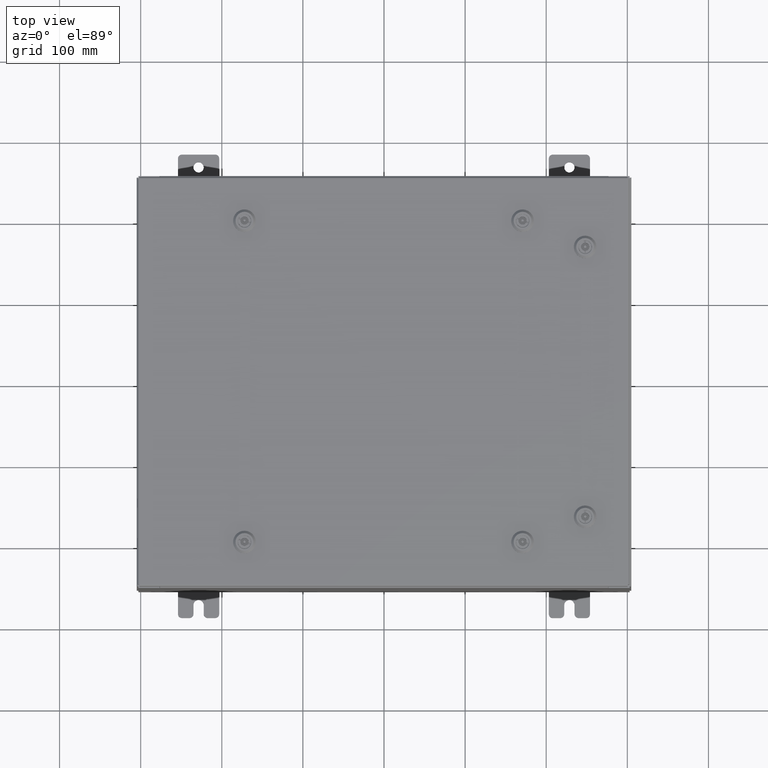
[diagram: clean part render]
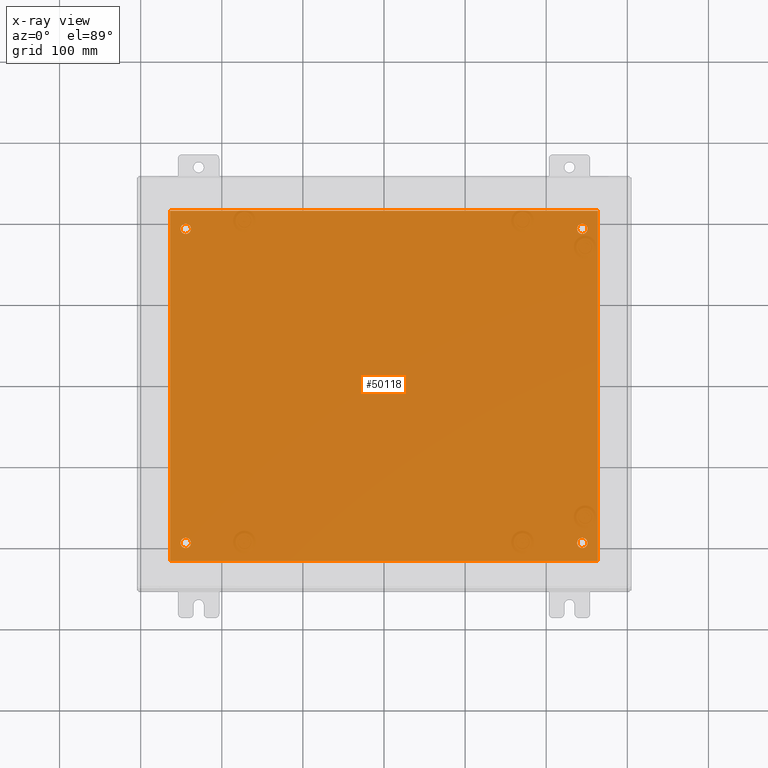
[diagram: x-ray — body ghosted, one internal face saturated and labeled with its STEP entity id]
A machine part, top view, then the same camera in x-ray: the body is ghosted and one INTERNAL B-rep face — a face not visible from any outside direction — is saturated and labeled: STEP entity #50118.
In plain terms, the highlighted planar face has unit normal (0, 0, -1).
Its self-contained STEP definition (entity closure, byte-faithful):
#906 = AXIS2_PLACEMENT_3D ( 'NONE', #30666, #1352, #35586 ) ;
#1352 = DIRECTION ( 'NONE',  ( -0.0000000000000000000, -0.0000000000000000000, 1.000000000000000000 ) ) ;
#2016 = EDGE_LOOP ( 'NONE', ( #51687, #37393 ) ) ;
#2511 = EDGE_LOOP ( 'NONE', ( #51256, #4199 ) ) ;
#3700 = DIRECTION ( 'NONE',  ( -0.0000000000000000000, -0.0000000000000000000, 1.000000000000000000 ) ) ;
#4177 = EDGE_LOOP ( 'NONE', ( #55088, #18578, #6065, #32136 ) ) ;
#4199 = ORIENTED_EDGE ( 'NONE', *, *, #62091, .T. ) ;
#4670 = VERTEX_POINT ( 'NONE', #40847 ) ;
#5115 = EDGE_CURVE ( 'NONE', #59052, #39698, #47098, .T. ) ;
#6013 = EDGE_CURVE ( 'NONE', #44694, #19442, #56971, .T. ) ;
#6065 = ORIENTED_EDGE ( 'NONE', *, *, #9290, .F. ) ;
#7417 = FACE_BOUND ( 'NONE', #42650, .T. ) ;
#7431 = VERTEX_POINT ( 'NONE', #50995 ) ;
#7780 = CARTESIAN_POINT ( 'NONE',  ( -9.625000000000001800, 7.624999999999998200, -0.1039999999999999800 ) ) ;
#8180 = AXIS2_PLACEMENT_3D ( 'NONE', #29012, #38863, #9527 ) ;
#9290 = EDGE_CURVE ( 'NONE', #4670, #44694, #45325, .T. ) ;
#9527 = DIRECTION ( 'NONE',  ( -1.000000000000000000, 0.0000000000000000000, -0.0000000000000000000 ) ) ;
#9943 = DIRECTION ( 'NONE',  ( -0.0000000000000000000, -0.0000000000000000000, 1.000000000000000000 ) ) ;
#10419 = AXIS2_PLACEMENT_3D ( 'NONE', #54745, #25372, #59701 ) ;
#10514 = CARTESIAN_POINT ( 'NONE',  ( 9.875000000000003600, 7.624999999999998200, -0.1039999999999999800 ) ) ;
#12100 = VERTEX_POINT ( 'NONE', #49921 ) ;
#12681 = DIRECTION ( 'NONE',  ( -1.000000000000000000, 0.0000000000000000000, 0.0000000000000000000 ) ) ;
#12708 = DIRECTION ( 'NONE',  ( -0.0000000000000000000, -0.0000000000000000000, 1.000000000000000000 ) ) ;
#13051 = VERTEX_POINT ( 'NONE', #23199 ) ;
#13756 = CARTESIAN_POINT ( 'NONE',  ( -10.50000000000000000, -8.500000000000000000, -0.1039999999999999800 ) ) ;
#15404 = EDGE_CURVE ( 'NONE', #13051, #12100, #17815, .T. ) ;
#15873 = CARTESIAN_POINT ( 'NONE',  ( -9.375000000000001800, -7.624999999999998200, -0.1039999999999999800 ) ) ;
#16178 = CARTESIAN_POINT ( 'NONE',  ( 9.625000000000001800, -7.624999999999998200, -0.1039999999999999800 ) ) ;
#17815 = CIRCLE ( 'NONE', #60374, 0.2499999999999998100 ) ;
#18295 = EDGE_CURVE ( 'NONE', #26347, #7431, #19166, .T. ) ;
#18578 = ORIENTED_EDGE ( 'NONE', *, *, #6013, .F. ) ;
#18630 = DIRECTION ( 'NONE',  ( 0.0000000000000000000, 1.000000000000000000, 0.0000000000000000000 ) ) ;
#18688 = DIRECTION ( 'NONE',  ( 0.0000000000000000000, -1.000000000000000000, 0.0000000000000000000 ) ) ;
#18882 = FACE_BOUND ( 'NONE', #2016, .T. ) ;
#19166 = CIRCLE ( 'NONE', #20986, 0.2500000000000008900 ) ;
#19442 = VERTEX_POINT ( 'NONE', #38030 ) ;
#19578 = ORIENTED_EDGE ( 'NONE', *, *, #22391, .T. ) ;
#20359 = CARTESIAN_POINT ( 'NONE',  ( 9.375000000000001800, 7.624999999999998200, -0.1039999999999999800 ) ) ;
#20986 = AXIS2_PLACEMENT_3D ( 'NONE', #7780, #42076, #12681 ) ;
#21010 = CIRCLE ( 'NONE', #49767, 0.2500000000000008900 ) ;
#21108 = DIRECTION ( 'NONE',  ( -1.000000000000000000, 0.0000000000000000000, 0.0000000000000000000 ) ) ;
#22034 = VECTOR ( 'NONE', #28335, 39.37007874015748100 ) ;
#22391 = EDGE_CURVE ( 'NONE', #12100, #13051, #61884, .T. ) ;
#23104 = DIRECTION ( 'NONE',  ( -0.0000000000000000000, -0.0000000000000000000, 1.000000000000000000 ) ) ;
#23199 = CARTESIAN_POINT ( 'NONE',  ( 9.875000000000003600, -7.624999999999998200, -0.1039999999999999800 ) ) ;
#23559 = CARTESIAN_POINT ( 'NONE',  ( 10.38300000000000100, -8.500000000000000000, -0.1040000000000009100 ) ) ;
#24075 = PLANE ( 'NONE',  #8180 ) ;
#24099 = VECTOR ( 'NONE', #18630, 39.37007874015748100 ) ;
#25372 = DIRECTION ( 'NONE',  ( -0.0000000000000000000, -0.0000000000000000000, 1.000000000000000000 ) ) ;
#26347 = VERTEX_POINT ( 'NONE', #44928 ) ;
#26905 = EDGE_CURVE ( 'NONE', #19442, #54238, #56541, .T. ) ;
#28335 = DIRECTION ( 'NONE',  ( 1.000000000000000000, 0.0000000000000000000, 0.0000000000000000000 ) ) ;
#29012 = CARTESIAN_POINT ( 'NONE',  ( 0.0000000000000000000, 0.0000000000000000000, -0.1039999999999999800 ) ) ;
#29099 = CIRCLE ( 'NONE', #906, 0.2500000000000008900 ) ;
#30168 = ORIENTED_EDGE ( 'NONE', *, *, #18295, .T. ) ;
#30460 = CARTESIAN_POINT ( 'NONE',  ( -10.38299999999999900, 8.499999999999998200, -0.1040000000000009100 ) ) ;
#30666 = CARTESIAN_POINT ( 'NONE',  ( -9.625000000000001800, 7.624999999999998200, -0.1039999999999999800 ) ) ;
#31141 = DIRECTION ( 'NONE',  ( -1.000000000000000000, -0.0000000000000000000, -0.0000000000000000000 ) ) ;
#32136 = ORIENTED_EDGE ( 'NONE', *, *, #32634, .F. ) ;
#32253 = VECTOR ( 'NONE', #31141, 39.37007874015748100 ) ;
#32634 = EDGE_CURVE ( 'NONE', #54238, #4670, #50223, .T. ) ;
#33005 = CARTESIAN_POINT ( 'NONE',  ( 9.625000000000001800, 7.624999999999998200, -0.1039999999999999800 ) ) ;
#33129 = EDGE_CURVE ( 'NONE', #35760, #46337, #62438, .T. ) ;
#33726 = ORIENTED_EDGE ( 'NONE', *, *, #38685, .T. ) ;
#35363 = ORIENTED_EDGE ( 'NONE', *, *, #15404, .T. ) ;
#35586 = DIRECTION ( 'NONE',  ( -1.000000000000000000, 0.0000000000000000000, 0.0000000000000000000 ) ) ;
#35606 = AXIS2_PLACEMENT_3D ( 'NONE', #42104, #12708, #47035 ) ;
#35760 = VERTEX_POINT ( 'NONE', #20359 ) ;
#37381 = CARTESIAN_POINT ( 'NONE',  ( -10.38299999999999900, 8.499999999999998200, -0.1040000000000009100 ) ) ;
#37393 = ORIENTED_EDGE ( 'NONE', *, *, #33129, .T. ) ;
#37956 = DIRECTION ( 'NONE',  ( -1.000000000000000000, 0.0000000000000000000, 0.0000000000000000000 ) ) ;
#37996 = CIRCLE ( 'NONE', #61237, 0.2499999999999998100 ) ;
#38030 = CARTESIAN_POINT ( 'NONE',  ( -10.38299999999999900, -8.500000000000000000, -0.1040000000000009100 ) ) ;
#38298 = CARTESIAN_POINT ( 'NONE',  ( 10.38300000000000100, -8.500000000000000000, -0.1039999999999999800 ) ) ;
#38685 = EDGE_CURVE ( 'NONE', #7431, #26347, #29099, .T. ) ;
#38863 = DIRECTION ( 'NONE',  ( 0.0000000000000000000, 0.0000000000000000000, -1.000000000000000000 ) ) ;
#39280 = CARTESIAN_POINT ( 'NONE',  ( 9.625000000000001800, -7.624999999999998200, -0.1039999999999999800 ) ) ;
#39698 = VERTEX_POINT ( 'NONE', #42525 ) ;
#40330 = EDGE_LOOP ( 'NONE', ( #35363, #19578 ) ) ;
#40847 = CARTESIAN_POINT ( 'NONE',  ( 10.38300000000000100, 8.499999999999998200, -0.1039999999999999800 ) ) ;
#42076 = DIRECTION ( 'NONE',  ( -0.0000000000000000000, -0.0000000000000000000, 1.000000000000000000 ) ) ;
#42104 = CARTESIAN_POINT ( 'NONE',  ( 9.625000000000001800, 7.624999999999998200, -0.1039999999999999800 ) ) ;
#42525 = CARTESIAN_POINT ( 'NONE',  ( -9.875000000000003600, -7.624999999999998200, -0.1039999999999999800 ) ) ;
#42650 = EDGE_LOOP ( 'NONE', ( #30168, #33726 ) ) ;
#43464 = FACE_OUTER_BOUND ( 'NONE', #4177, .T. ) ;
#44245 = DIRECTION ( 'NONE',  ( -1.000000000000000000, 0.0000000000000000000, 0.0000000000000000000 ) ) ;
#44694 = VERTEX_POINT ( 'NONE', #37381 ) ;
#44928 = CARTESIAN_POINT ( 'NONE',  ( -9.375000000000001800, 7.624999999999998200, -0.1039999999999999800 ) ) ;
#44998 = FACE_BOUND ( 'NONE', #2511, .T. ) ;
#45325 = LINE ( 'NONE', #60501, #32253 ) ;
#46337 = VERTEX_POINT ( 'NONE', #10514 ) ;
#47035 = DIRECTION ( 'NONE',  ( -1.000000000000000000, 0.0000000000000000000, 0.0000000000000000000 ) ) ;
#47042 = VECTOR ( 'NONE', #18688, 39.37007874015748100 ) ;
#47098 = CIRCLE ( 'NONE', #10419, 0.2500000000000008900 ) ;
#48224 = AXIS2_PLACEMENT_3D ( 'NONE', #16178, #50535, #21108 ) ;
#49767 = AXIS2_PLACEMENT_3D ( 'NONE', #52496, #23104, #57415 ) ;
#49921 = CARTESIAN_POINT ( 'NONE',  ( 9.375000000000001800, -7.624999999999998200, -0.1039999999999999800 ) ) ;
#50118 = ADVANCED_FACE ( 'NONE', ( #44998, #56455, #18882, #7417, #43464 ), #24075, .T. ) ;
#50223 = LINE ( 'NONE', #23559, #24099 ) ;
#50535 = DIRECTION ( 'NONE',  ( -0.0000000000000000000, -0.0000000000000000000, 1.000000000000000000 ) ) ;
#50995 = CARTESIAN_POINT ( 'NONE',  ( -9.875000000000003600, 7.624999999999998200, -0.1039999999999999800 ) ) ;
#51256 = ORIENTED_EDGE ( 'NONE', *, *, #5115, .T. ) ;
#51687 = ORIENTED_EDGE ( 'NONE', *, *, #60607, .T. ) ;
#52496 = CARTESIAN_POINT ( 'NONE',  ( -9.625000000000001800, -7.624999999999998200, -0.1039999999999999800 ) ) ;
#54238 = VERTEX_POINT ( 'NONE', #38298 ) ;
#54745 = CARTESIAN_POINT ( 'NONE',  ( -9.625000000000001800, -7.624999999999998200, -0.1039999999999999800 ) ) ;
#55088 = ORIENTED_EDGE ( 'NONE', *, *, #26905, .F. ) ;
#56455 = FACE_BOUND ( 'NONE', #40330, .T. ) ;
#56541 = LINE ( 'NONE', #13756, #22034 ) ;
#56971 = LINE ( 'NONE', #30460, #47042 ) ;
#57415 = DIRECTION ( 'NONE',  ( -1.000000000000000000, 0.0000000000000000000, 0.0000000000000000000 ) ) ;
#59052 = VERTEX_POINT ( 'NONE', #15873 ) ;
#59701 = DIRECTION ( 'NONE',  ( -1.000000000000000000, 0.0000000000000000000, 0.0000000000000000000 ) ) ;
#60374 = AXIS2_PLACEMENT_3D ( 'NONE', #39280, #9943, #44245 ) ;
#60501 = CARTESIAN_POINT ( 'NONE',  ( -10.50000000000000000, 8.499999999999998200, -0.1039999999999999800 ) ) ;
#60607 = EDGE_CURVE ( 'NONE', #46337, #35760, #37996, .T. ) ;
#61237 = AXIS2_PLACEMENT_3D ( 'NONE', #33005, #3700, #37956 ) ;
#61884 = CIRCLE ( 'NONE', #48224, 0.2499999999999998100 ) ;
#62091 = EDGE_CURVE ( 'NONE', #39698, #59052, #21010, .T. ) ;
#62438 = CIRCLE ( 'NONE', #35606, 0.2499999999999998100 ) ;